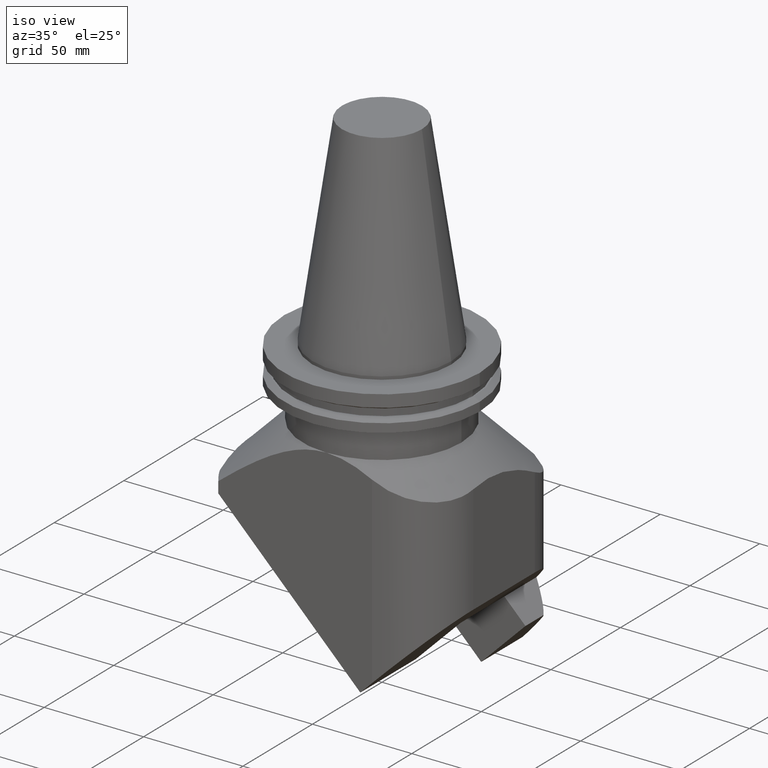
[diagram: clean part render]
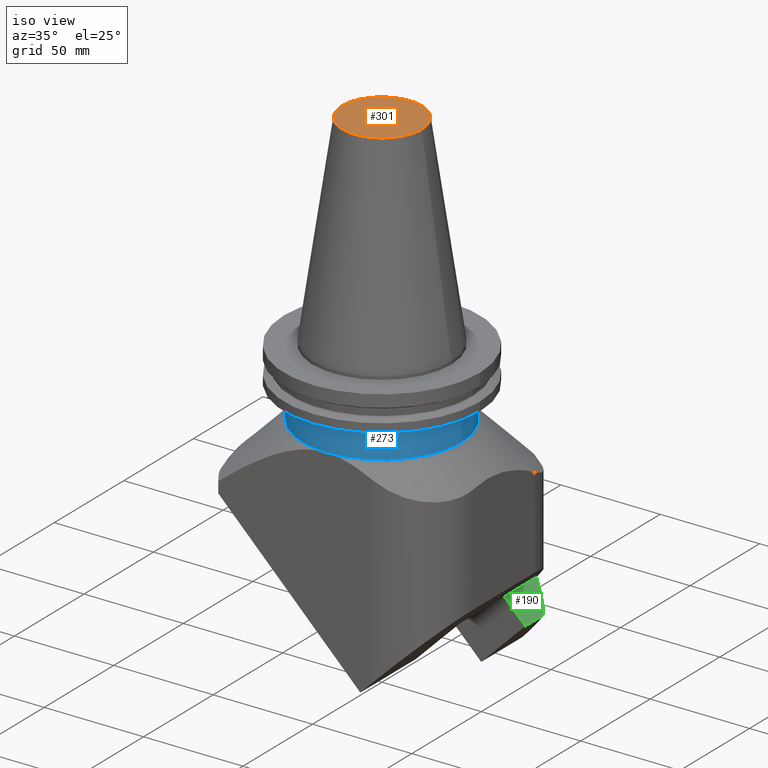
[diagram: same view with three faces highlighted in distinct colors, each labeled with its STEP entity id]
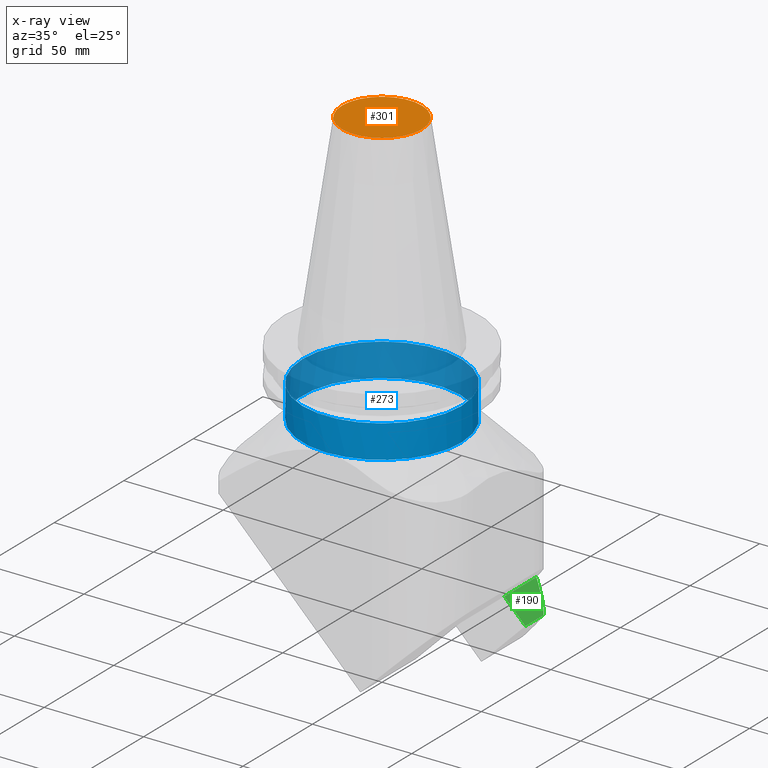
[diagram: x-ray of the same camera — body ghosted, the three highlighted faces saturated]
A machine part, iso view with three faces highlighted in distinct colors.
The next image is the same camera in x-ray (body ghosted, the three faces saturated) — at least one of them is partly hidden behind the body in this view.
Their STEP definitions:

[orange] entity #301 — the highlighted planar face has unit normal (-0, 0, 1).
#198=EDGE_CURVE('Unnamed[1]',#464,#464,#465,.T.);
#301=ADVANCED_FACE('Unnamed[1]',(#600),#601,.T.);
#464=VERTEX_POINT('',#840);
#465=CIRCLE('',#841,20.1083333297217);
#600=FACE_OUTER_BOUND('',#1071,.T.);
#601=PLANE('',#1072);
#840=CARTESIAN_POINT('',(20.1083333297217,1.36298380005854E-014,101.6));
#841=AXIS2_PLACEMENT_3D('',#1236,#1237,#1238);
#1071=EDGE_LOOP('',(#1416));
#1072=AXIS2_PLACEMENT_3D('',#1417,#1418,#1419);
#1236=CARTESIAN_POINT('',(-1.24424114793371E-014,2.25597318603832E-014,101.6));
#1237=DIRECTION('',(1.22464679914735E-016,-2.22044604925031E-016,-1.0));
#1238=DIRECTION('',(1.0,-4.44089209850063E-016,1.22464679914735E-016));
#1416=ORIENTED_EDGE('',*,*,#198,.F.);
#1417=CARTESIAN_POINT('',(10.0541666648608,1.80947849304843E-014,101.6));
#1418=DIRECTION('',(-1.22464679914735E-016,2.22044604925031E-016,1.0));
#1419=DIRECTION('',(-1.0,4.44089209850063E-016,-1.22464679914735E-016));

[blue] entity #273 — the highlighted cylindrical surface (bore or boss wall) has radius 40 mm, axis along (0, -0, -1).
#217=EDGE_CURVE('Unnamed[1]',#411,#411,#491,.T.);
#273=ADVANCED_FACE('Unnamed[1]',(#563,#564),#565,.T.);
#285=EDGE_CURVE('Unnamed[1]',#579,#579,#580,.T.);
#411=VERTEX_POINT('',#753);
#491=CIRCLE('',#878,39.9999999999994);
#563=FACE_BOUND('',#1012,.T.);
#564=FACE_BOUND('',#1013,.T.);
#565=CYLINDRICAL_SURFACE('',#1014,39.9999999999994);
#579=VERTEX_POINT('',#1043);
#580=CIRCLE('',#1044,39.9999999999994);
#753=CARTESIAN_POINT('',(1.33151739428989E-013,-40.0000000000013,-35.6500223208098));
#878=AXIS2_PLACEMENT_3D('',#1268,#1269,#1270);
#1012=EDGE_LOOP('',(#1346));
#1013=EDGE_LOOP('',(#1347));
#1014=AXIS2_PLACEMENT_3D('',#1348,#1349,#1350);
#1043=CARTESIAN_POINT('',(39.9999999999994,-2.19935181178241E-014,-19.0500000000001));
#1044=AXIS2_PLACEMENT_3D('',#1375,#1376,#1377);
#1268=CARTESIAN_POINT('',(4.36586857247113E-015,-7.91589512179276E-015,-35.6500223208098));
#1269=DIRECTION('',(1.22464679914735E-016,-2.22044604925031E-016,-1.0));
#1270=DIRECTION('',(1.0,-4.44089209850063E-016,1.22464679914735E-016));
#1346=ORIENTED_EDGE('',*,*,#217,.F.);
#1347=ORIENTED_EDGE('',*,*,#285,.T.);
#1348=CARTESIAN_POINT('',(3.34941036242342E-015,-6.07292242280731E-015,-27.3500111604049));
#1349=DIRECTION('',(1.22464679914735E-016,-2.22044604925031E-016,-1.0));
#1350=DIRECTION('',(1.0,-4.44089209850063E-016,1.22464679914735E-016));
#1375=CARTESIAN_POINT('',(2.33295215237571E-015,-4.22994972382186E-015,-19.0500000000001));
#1376=DIRECTION('',(1.22464679914735E-016,-2.22044604925031E-016,-1.0));
#1377=DIRECTION('',(1.0,-4.44089209850063E-016,1.22464679914735E-016));

[green] entity #190 — the highlighted planar face has unit normal (-0.7071, 0, -0.7071).
#147=EDGE_CURVE('Unnamed[1]',#389,#358,#390,.T.);
#152=EDGE_CURVE('Unnamed[1]',#358,#377,#397,.T.);
#175=EDGE_CURVE('Unnamed[1]',#432,#377,#433,.T.);
#190=ADVANCED_FACE('Unnamed[1]',(#452),#453,.F.);
#262=EDGE_CURVE('Unnamed[1]',#551,#432,#552,.T.);
#295=EDGE_CURVE('Unnamed[1]',#551,#389,#592,.T.);
#358=VERTEX_POINT('',#682);
#377=VERTEX_POINT('',#709);
#389=VERTEX_POINT('',#725);
#390=ELLIPSE('',#726,95.4594154601876,67.5000000000011);
#397=ELLIPSE('',#735,28.2842712474606,19.9999999999986);
#432=VERTEX_POINT('',#794);
#433=LINE('',#795,#796);
#452=FACE_OUTER_BOUND('',#822,.T.);
#453=PLANE('',#823);
#551=VERTEX_POINT('',#972);
#552=LINE('',#973,#974);
#592=LINE('',#1060,#1061);
#682=CARTESIAN_POINT('',(46.8947368421008,48.5503208692747,-125.462760700698));
#709=CARTESIAN_POINT('',(49.9924494298876,44.7128679885993,-128.560473288485));
#725=CARTESIAN_POINT('',(39.3858477120896,54.8179259002038,-117.953871570687));
#726=AXIS2_PLACEMENT_3D('',#1159,#1160,#1161);
#735=AXIS2_PLACEMENT_3D('',#1168,#1169,#1170);
#794=CARTESIAN_POINT('',(49.9924494298876,31.7500000000016,-128.560473288485));
#795=CARTESIAN_POINT('',(49.9924494298876,-5.07472668661047E-014,-128.560473288485));
#796=VECTOR('',#1199,1.0);
#822=EDGE_LOOP('',(#1223,#1224,#1225,#1226,#1227));
#823=AXIS2_PLACEMENT_3D('',#1228,#1229,#1230);
#972=CARTESIAN_POINT('',(39.3858477120895,31.7500000000015,-117.953871570687));
#973=CARTESIAN_POINT('',(31.5841857936793,31.7500000000014,-110.152209652276));
#974=VECTOR('',#1340,1.0);
#1060=CARTESIAN_POINT('',(39.3858477120895,-4.36818508020277E-014,-117.953871570687));
#1061=VECTOR('',#1408,1.0);
#1159=CARTESIAN_POINT('',(9.62180789337615E-015,-1.74456058174222E-014,-78.5680238585953));
#1160=DIRECTION('',(-0.707106781186564,1.57009245868388E-016,-0.707106781186531));
#1161=DIRECTION('',(0.707106781186532,-4.71027737605129E-016,-0.707106781186564));
#1168=CARTESIAN_POINT('',(32.999999999998,34.1650406117131,-111.568023858595));
#1169=DIRECTION('',(-0.707106781186563,1.57009245868388E-016,-0.707106781186532));
#1170=DIRECTION('',(-0.707106781186532,5.57623343228676E-016,0.707106781186564));
#1199=DIRECTION('',(4.44089209850063E-016,1.0,-2.22044604925031E-016));
#1223=ORIENTED_EDGE('',*,*,#262,.T.);
#1224=ORIENTED_EDGE('',*,*,#175,.T.);
#1225=ORIENTED_EDGE('',*,*,#152,.F.);
#1226=ORIENTED_EDGE('',*,*,#147,.F.);
#1227=ORIENTED_EDGE('',*,*,#295,.F.);
#1228=CARTESIAN_POINT('',(44.6891485709886,-4.72145588340662E-014,-123.257172429586));
#1229=DIRECTION('',(-0.707106781186564,1.57009245868388E-016,-0.707106781186531));
#1230=DIRECTION('',(0.707106781186531,-4.71027737605129E-016,-0.707106781186564));
#1340=DIRECTION('',(0.707106781186531,7.32022031094229E-015,-0.707106781186564));
#1408=DIRECTION('',(4.44089209850063E-016,1.0,-2.22044604925031E-016));